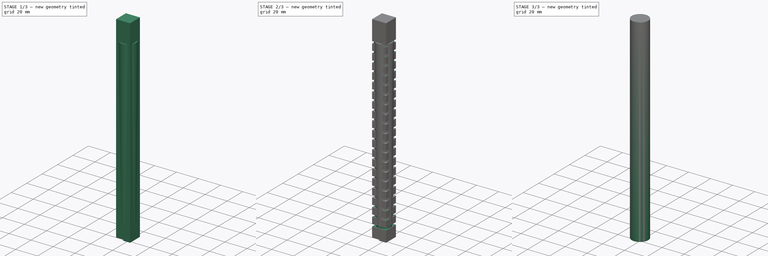
[diagram: build sequence overview — one tinted view per stage of 3, left to right]
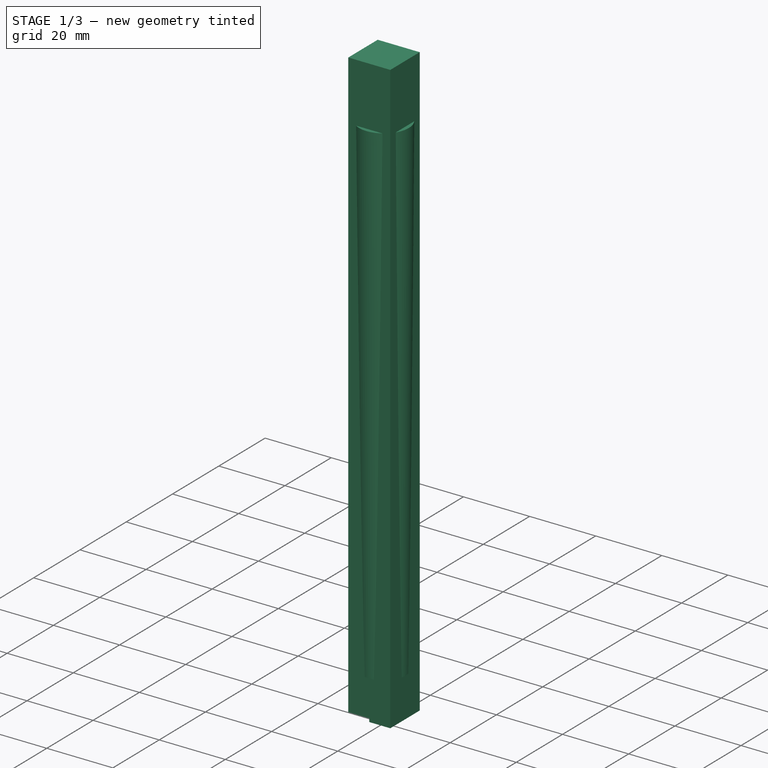
[diagram: stage 1 of 3 — iso view after this stage's code; geometry added in this stage tinted green]
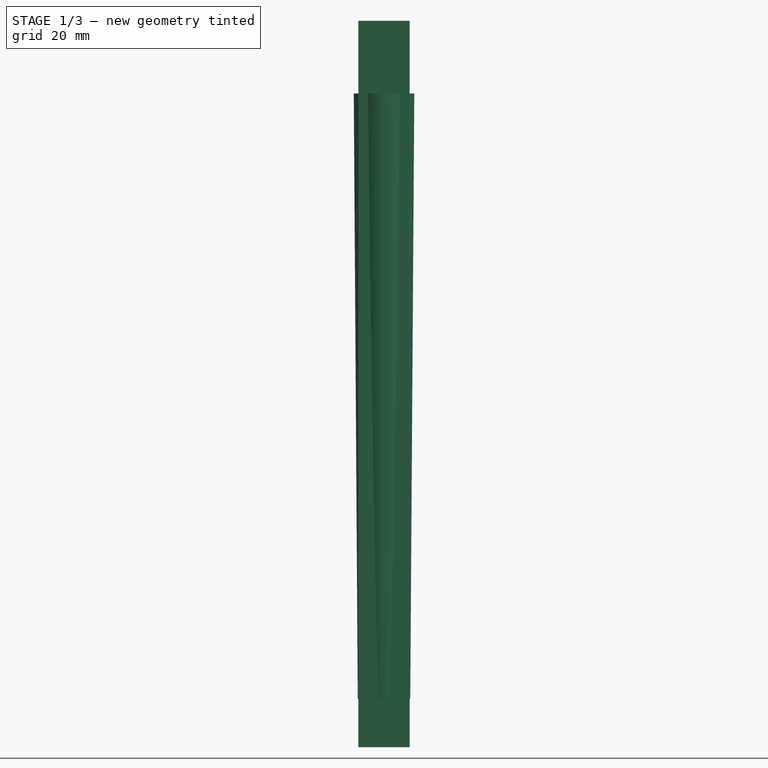
[diagram: stage 1 of 3 — front view after this stage's code; geometry added in this stage tinted green]
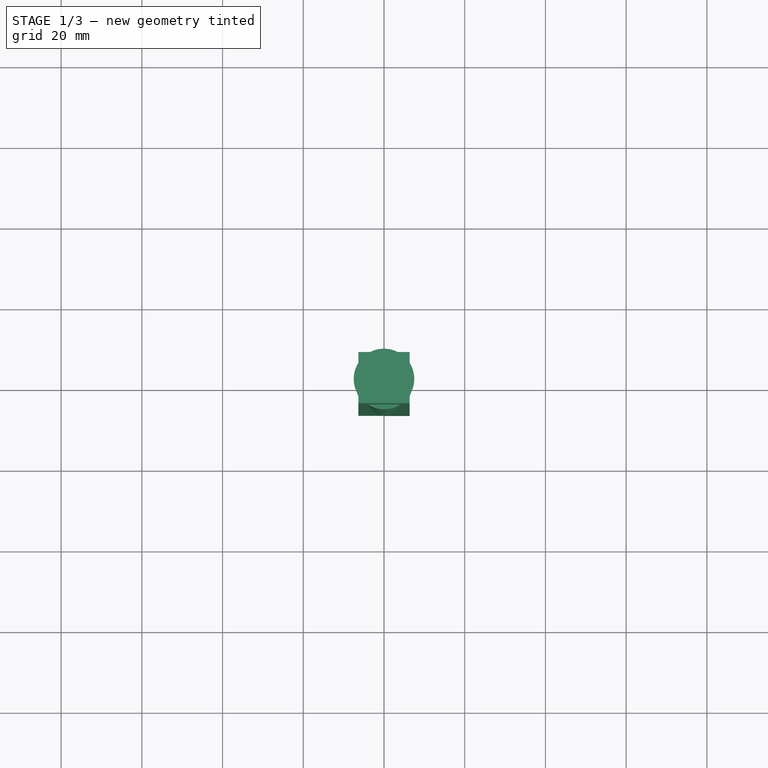
[diagram: stage 1 of 3 — top view after this stage's code; geometry added in this stage tinted green]
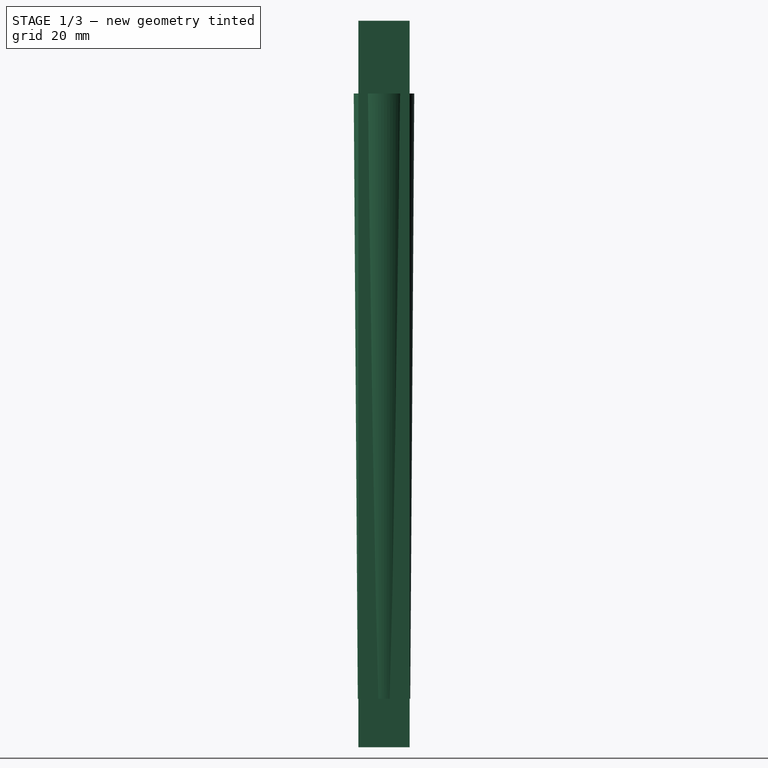
[diagram: stage 1 of 3 — right view after this stage's code; geometry added in this stage tinted green]
FCSTD DOCUMENT  (FreeCAD 0.16R)
Label: Broach_tapered
License: All rights reserved
LicenseURL: http://en.wikipedia.org/wiki/All_rights_reserved
objects: Sketcher::SketchObject×6, PartDesign::Pad×2, PartDesign::Groove×2, PartDesign::Pocket×1, PartDesign::LinearPattern×1, Part::Cone×1, Part::MultiCommon×1
note: 19 computed .brp shape members not serialized (recipe doc carries the construction recipe); baked Part::Feature solids carry a one-line shape summary decoded from their .brp

FEATURE [Sketcher::SketchObject] Sketch001
  sketch-geometry (4):
    g0: LineSegment StartX=-6.35 StartY=6.35 StartZ=0 EndX=6.35 EndY=6.35 EndZ=0
    g1: LineSegment StartX=6.35 StartY=6.35 StartZ=0 EndX=6.35 EndY=-6.35 EndZ=0
    g2: LineSegment StartX=6.35 StartY=-6.35 StartZ=0 EndX=-6.35 EndY=-6.35 EndZ=0
    g3: LineSegment StartX=-6.35 StartY=-6.35 StartZ=0 EndX=-6.35 EndY=6.35 EndZ=0
  constraints (11):
    c: Coincident(g0,g1)
    c: Coincident(g1,g2)
    c: Coincident(g2,g3)
    c: Coincident(g3,g0)
    c: Horizontal(g0)
    c: Horizontal(g2)
    c: Vertical(g1)
    c: Vertical(g3)
    c: Equal(g1,g2)
    c: Symmetric(g0,g2,g-1)
    c: Distance(g0) = 12.7
FEATURE [PartDesign::Pad] Pad
  Length = 180
  Length2 = 100
  Sketch = -> Sketch001
  Type = 0
FEATURE [Sketcher::SketchObject] Sketch006
  Placement = pos=(0,0,0) rot=(1,0,0;3.14159rad)
  Support = -> Pad [Face5]
  sketch-geometry (4):
    g0: LineSegment StartX=-12 StartY=12 StartZ=0 EndX=0 EndY=12 EndZ=0
    g1: LineSegment StartX=0 StartY=12 StartZ=0 EndX=0 EndY=0 EndZ=0
    g2: LineSegment StartX=0 StartY=0 StartZ=0 EndX=-12 EndY=0 EndZ=0
    g3: LineSegment StartX=-12 StartY=0 StartZ=0 EndX=-12 EndY=12 EndZ=0
  constraints (11):
    c: Coincident(g0,g1)
    c: Coincident(g1,g2)
    c: Coincident(g2,g3)
    c: Coincident(g3,g0)
    c: Horizontal(g0)
    c: Horizontal(g2)
    c: Vertical(g1)
    c: Vertical(g3)
    c: Coincident(g1,g-1)
    c: Equal(g0,g1)
    c: Distance(g2) = 12
FEATURE [PartDesign::Pocket] Pocket
  Length = 1
  Sketch = -> Sketch006
  Type = 0
FEATURE [Part::Cone] Cone
  Angle = 360
  Height = 150
  Placement = pos=(0,0,12) rot=(0,0,1;0rad)
  Radius1 = 6.5
  Radius2 = 7.5
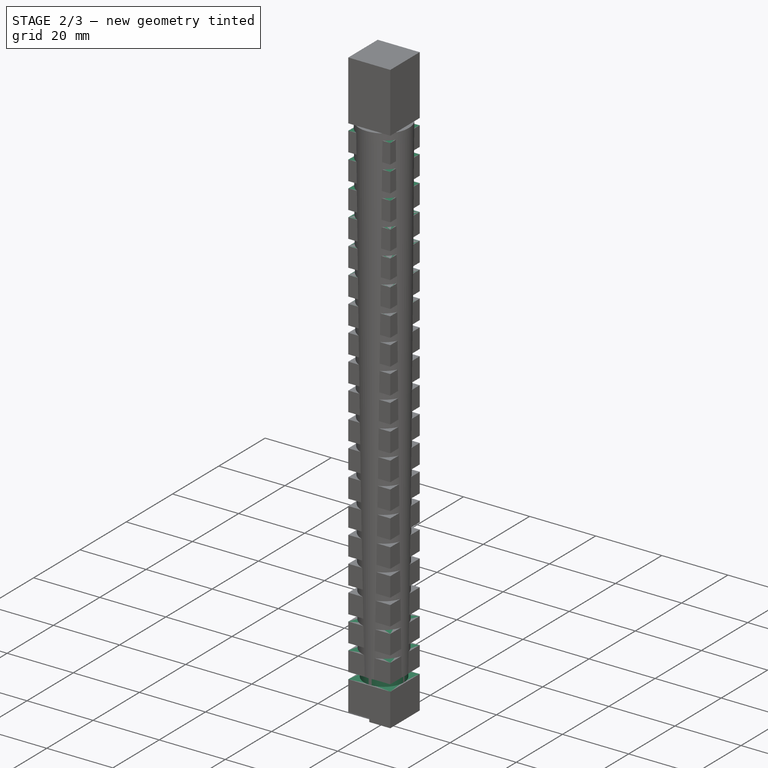
[diagram: stage 2 of 3 — iso view after this stage's code; geometry added in this stage tinted green]
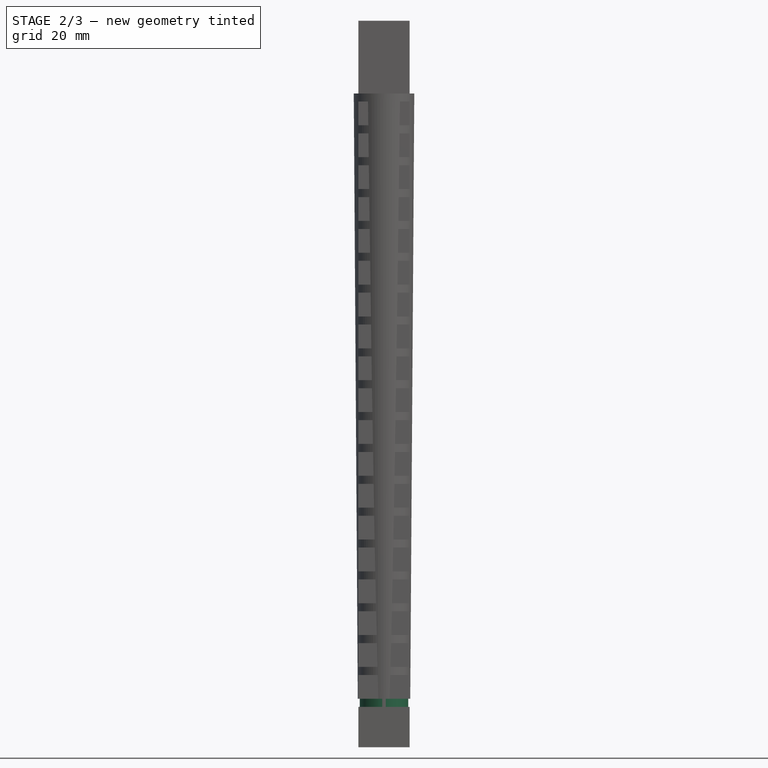
[diagram: stage 2 of 3 — front view after this stage's code; geometry added in this stage tinted green]
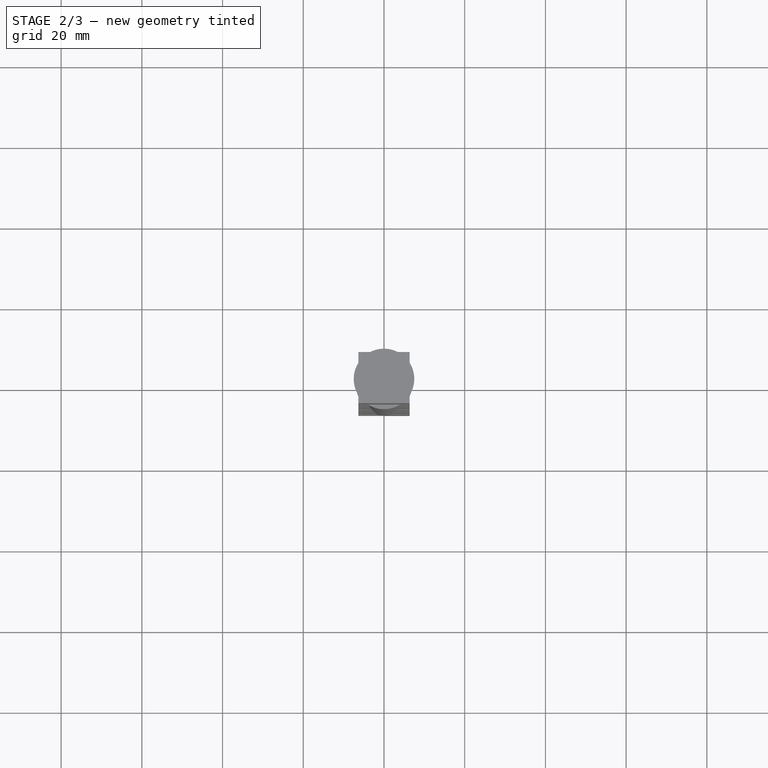
[diagram: stage 2 of 3 — top view after this stage's code; geometry added in this stage tinted green]
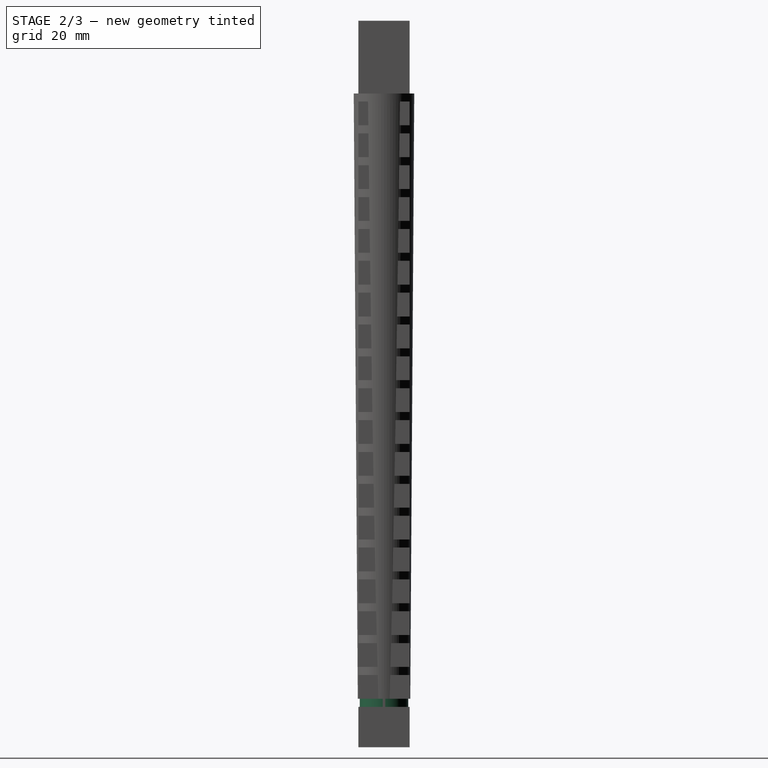
[diagram: stage 2 of 3 — right view after this stage's code; geometry added in this stage tinted green]
FEATURE [Sketcher::SketchObject] Sketch005
  Placement = pos=(0,0,0) rot=(1,0,0;1.5708rad)
  Support = -> Pocket [Face7]
  sketch-geometry (4):
    g0: LineSegment StartX=-26 StartY=10 StartZ=0 EndX=-6 EndY=10 EndZ=0
    g1: LineSegment StartX=-6 StartY=10 StartZ=0 EndX=-6 EndY=12 EndZ=0
    g2: LineSegment StartX=-6 StartY=12 StartZ=0 EndX=-26 EndY=12 EndZ=0
    g3: LineSegment StartX=-26 StartY=12 StartZ=0 EndX=-26 EndY=10 EndZ=0
  constraints (12):
    c: Coincident(g0,g1)
    c: Coincident(g1,g2)
    c: Coincident(g2,g3)
    c: Coincident(g3,g0)
    c: Horizontal(g0)
    c: Horizontal(g2)
    c: Vertical(g1)
    c: Vertical(g3)
    c: Distance(g3) = 2
    c: Distance(g0) = 20
    c: DistanceX(g-2,g0) = -6
    c: DistanceY(g-1,g2) = 12
FEATURE [PartDesign::Groove] Groove
  Angle = 360
  Axis = (0,0,1)
  Base = (0,0,0)
  ReferenceAxis = -> Sketch005 [V_Axis]
  Reversed = true
  Sketch = -> Sketch005
FEATURE [PartDesign::LinearPattern] LinearPattern
  Direction = -> Sketch005 [V_Axis]
  Length = 150
  Occurrences = 20
  Originals = -> [Groove]
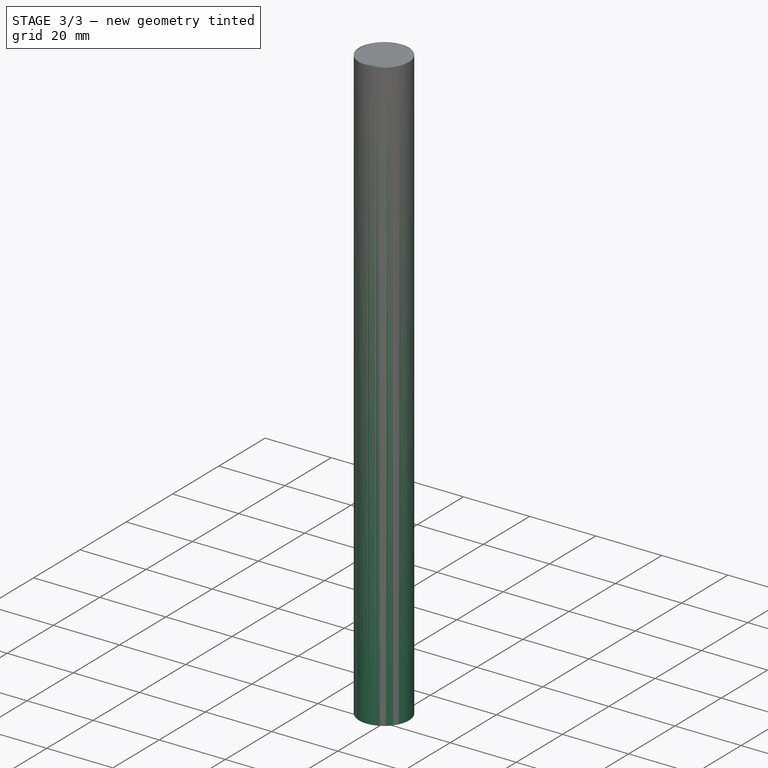
[diagram: stage 3 of 3 — iso view after this stage's code; geometry added in this stage tinted green]
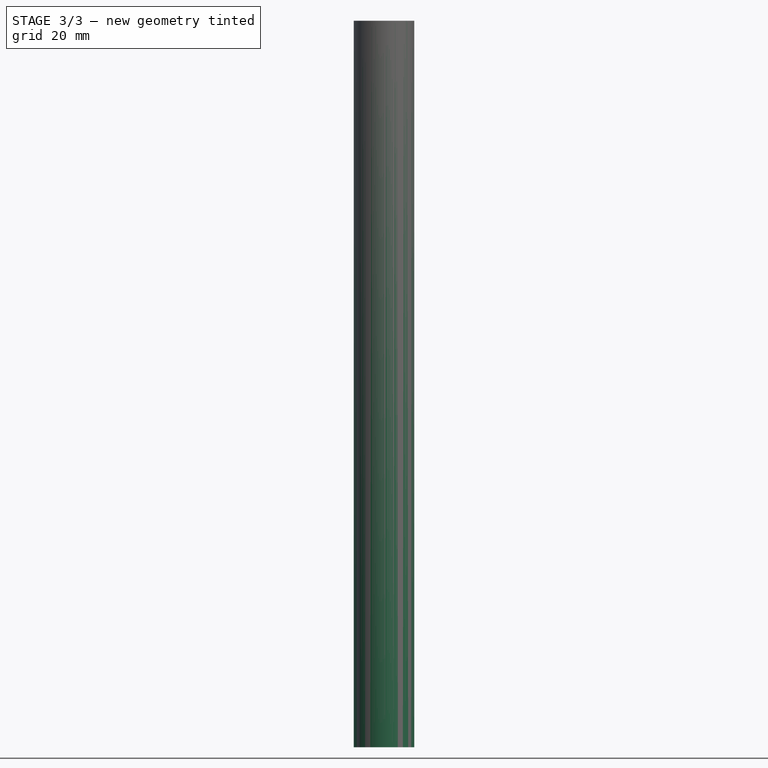
[diagram: stage 3 of 3 — front view after this stage's code; geometry added in this stage tinted green]
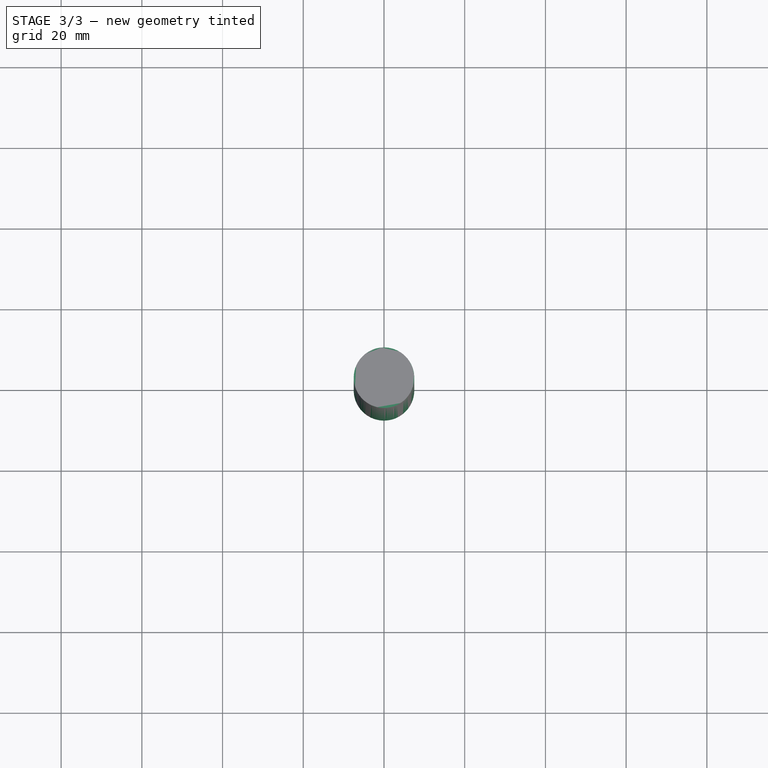
[diagram: stage 3 of 3 — top view after this stage's code; geometry added in this stage tinted green]
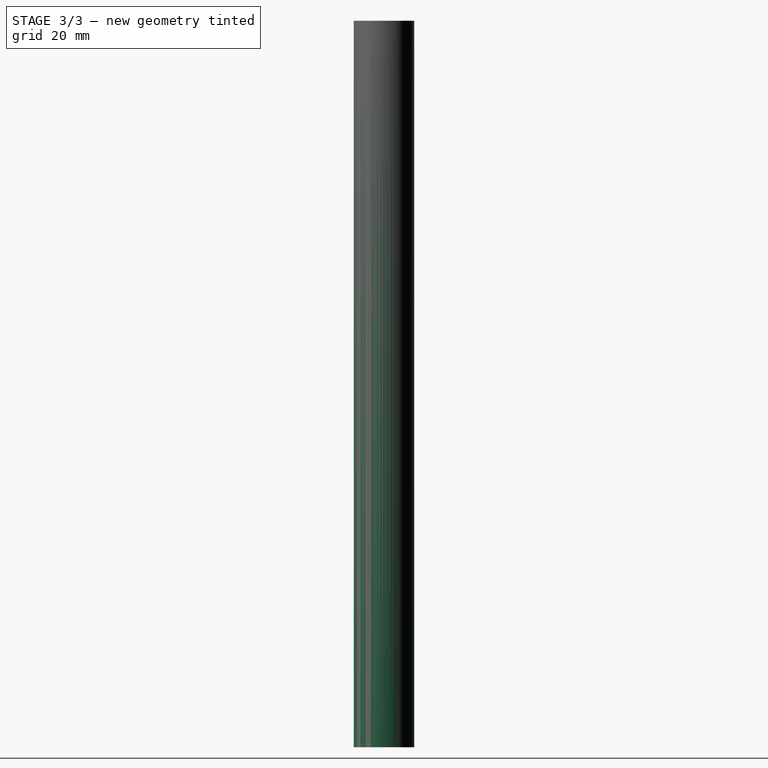
[diagram: stage 3 of 3 — right view after this stage's code; geometry added in this stage tinted green]
FEATURE [Sketcher::SketchObject] Sketch002
  sketch-geometry (1):
    g0: Circle CenterX=0 CenterY=0 CenterZ=0 NormalX=0 NormalY=0 NormalZ=1 Radius=7.5
  constraints (2):
    c: Coincident(g0,g-1)
    c: Radius(g0) = 7.5
FEATURE [PartDesign::Pad] Pad001
  Length = 180
  Length2 = 100
  Sketch = -> Sketch002
  Type = 0
FEATURE [Sketcher::SketchObject] Sketch
  Placement = pos=(0,0,0) rot=(1,0,0;3.14159rad)
  Support = -> LinearPattern [Face2]
FEATURE [Sketcher::SketchObject] Sketch007
  Placement = pos=(0,0,0) rot=(1,0,0;1.5708rad)
  Support = -> LinearPattern [Face6]
  sketch-geometry (4):
    g0: LineSegment StartX=-16.35 StartY=12 StartZ=0 EndX=-6.35 EndY=12 EndZ=0
    g1: LineSegment StartX=-6.35 StartY=12 StartZ=0 EndX=-6.35 EndY=0 EndZ=0
    g2: LineSegment StartX=-6.35 StartY=0 StartZ=0 EndX=-16.35 EndY=0 EndZ=0
    g3: LineSegment StartX=-16.35 StartY=0 StartZ=0 EndX=-16.35 EndY=12 EndZ=0
  constraints (12):
    c: Coincident(g0,g1)
    c: Coincident(g1,g2)
    c: Coincident(g2,g3)
    c: Coincident(g3,g0)
    c: Horizontal(g0)
    c: Horizontal(g2)
    c: Vertical(g1)
    c: Vertical(g3)
    c: Distance(g1) = 12
    c: DistanceX(g-2,g1) = -6.35
    c: PointOnObject(g2,g-1)
    c: Distance(g0) = 10
FEATURE [PartDesign::Groove] Groove001
  Angle = 360
  Axis = (0,0,1)
  Base = (0,0,0)
  ReferenceAxis = -> Sketch007 [V_Axis]
  Reversed = true
  Sketch = -> Sketch007
FEATURE [Part::MultiCommon] Common
  Shapes = -> [Cone,Groove001]
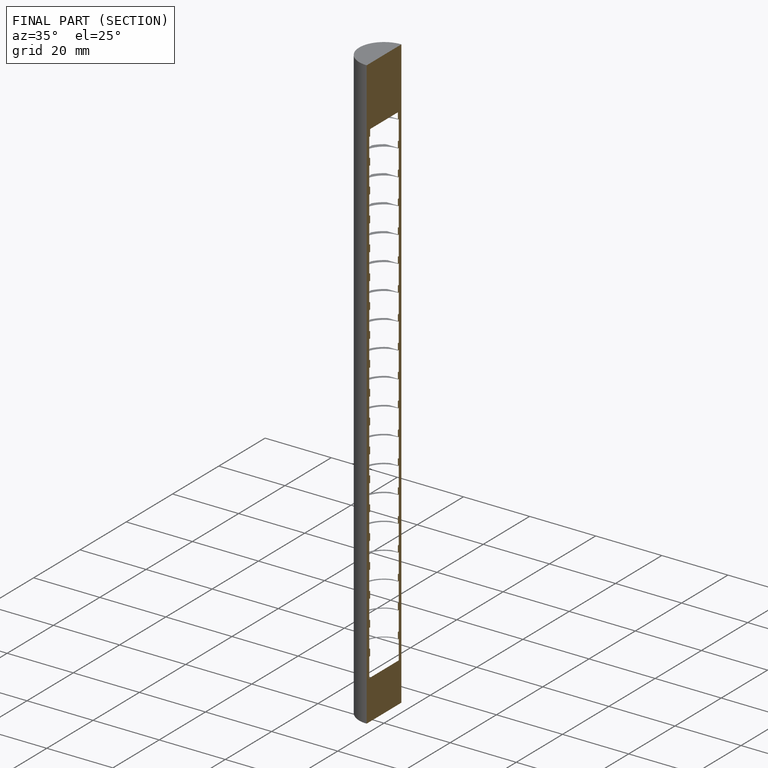
[diagram: finished part — half-section view (interior)]
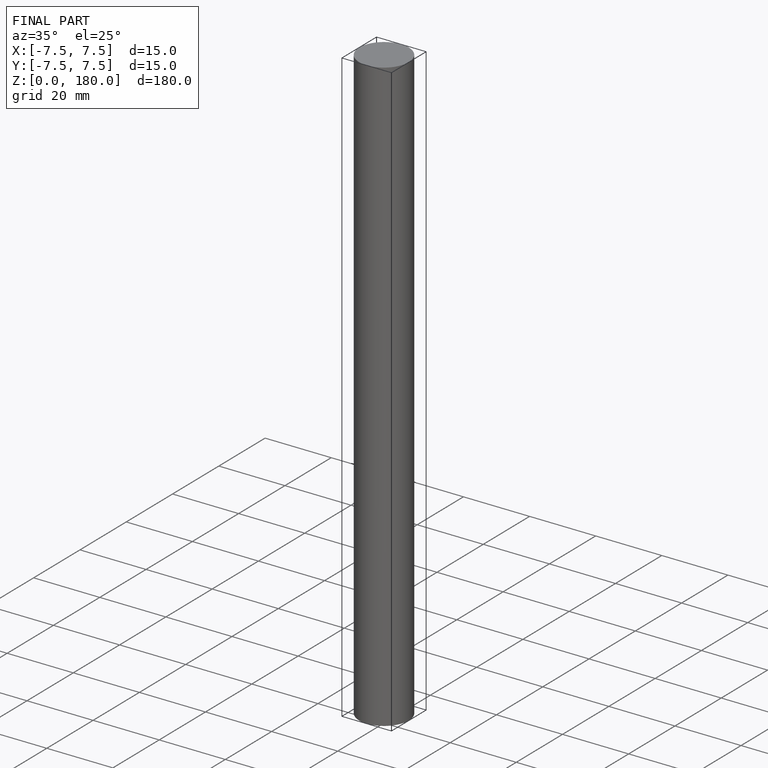
[diagram: finished part — iso view with bounding-box wireframe]
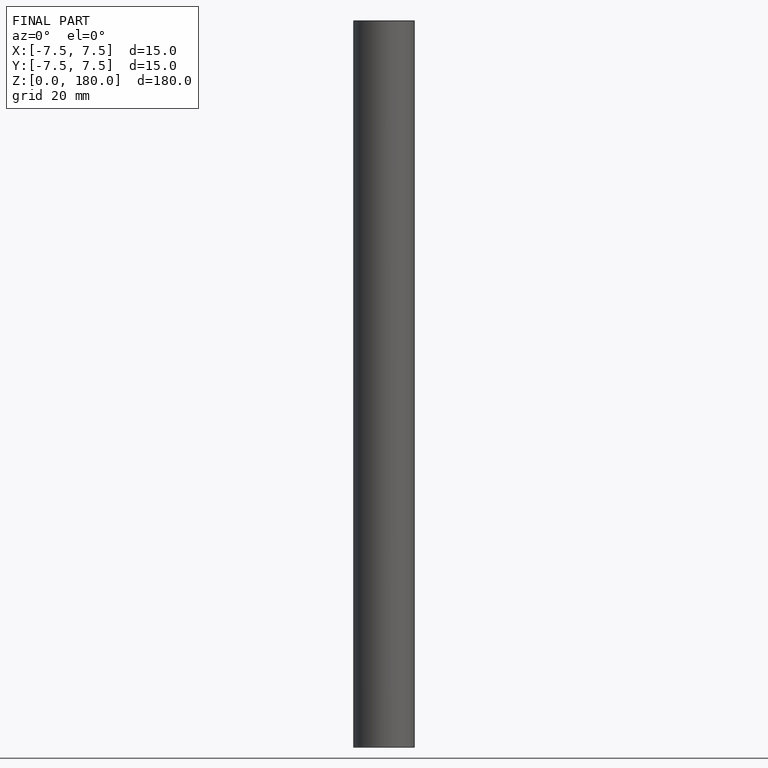
[diagram: finished part — front view with bounding-box wireframe]
